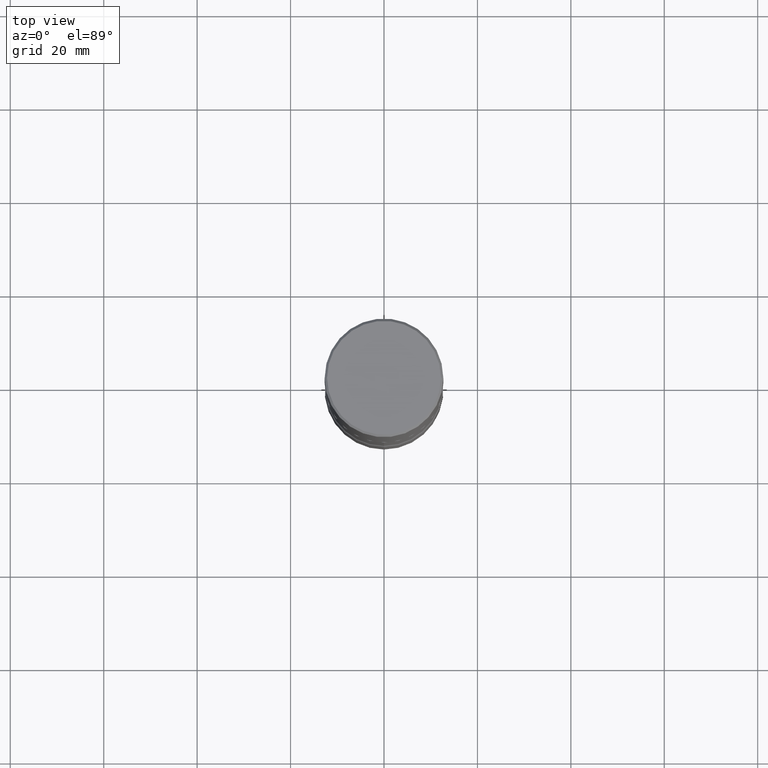
[diagram: clean part render]
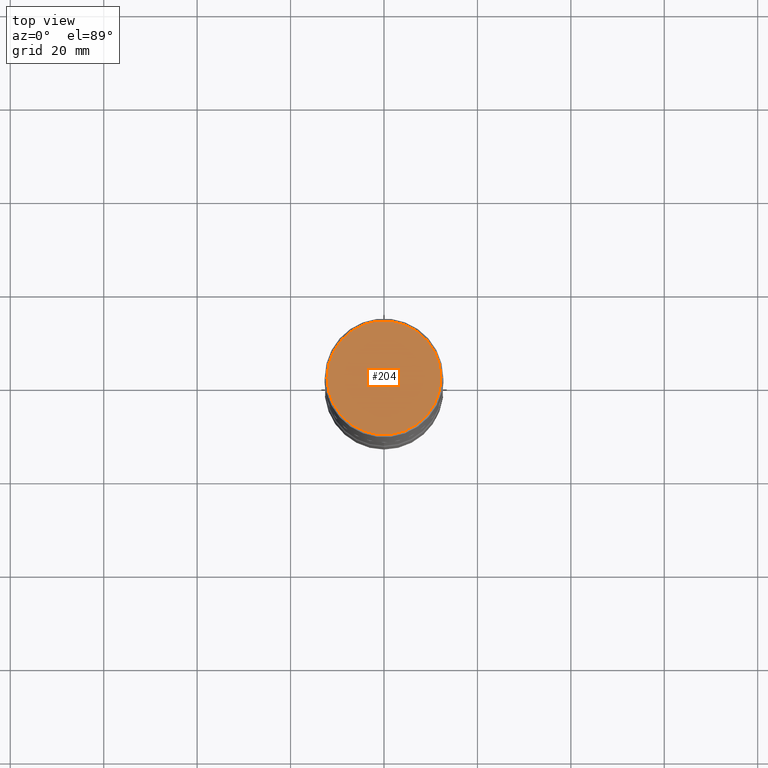
[diagram: same view with one face highlighted and labeled with its STEP entity id]
A machine part, top view. The second image highlights one B-rep face of the part: STEP entity #204.
In plain terms, the highlighted planar face has unit normal (0, -0, -1).
Its self-contained STEP definition (entity closure, byte-faithful):
#11 = DIRECTION ( 'NONE',  ( 2.438088387897960049E-29, -3.491481338843145188E-15, -1.000000000000000000 ) ) ;
#27 = ORIENTED_EDGE ( 'NONE', *, *, #119, .T. ) ;
#33 = DIRECTION ( 'NONE',  ( 1.000000000000000000, -6.982962677686266711E-15, 4.876036955247133327E-29 ) ) ;
#44 = DIRECTION ( 'NONE',  ( -1.000000000000000000, 6.982962677686265922E-15, -4.876176775795935793E-29 ) ) ;
#50 = CARTESIAN_POINT ( 'NONE',  ( -0.4799999999999995937, 3.386736898677836436E-15, 1.280553747027767124E-17 ) ) ;
#51 = ORIENTED_EDGE ( 'NONE', *, *, #333, .T. ) ;
#68 = CARTESIAN_POINT ( 'NONE',  ( 0.4799999999999995937, -3.396558832296479338E-15, 1.280553747032483033E-17 ) ) ;
#98 = DIRECTION ( 'NONE',  ( -2.445468806185136597E-29, 3.491481338843145583E-15, 1.000000000000000000 ) ) ;
#119 = EDGE_CURVE ( 'NONE', #452, #235, #331, .T. ) ;
#162 = CARTESIAN_POINT ( 'NONE',  ( 3.351822085289404787E-15, 0.4799999999999995937, -1.669508273909557867E-15 ) ) ;
#182 = EDGE_LOOP ( 'NONE', ( #51, #27 ) ) ;
#204 = ADVANCED_FACE ( 'NONE', ( #292 ), #475, .F. ) ;
#235 = VERTEX_POINT ( 'NONE', #50 ) ;
#237 = AXIS2_PLACEMENT_3D ( 'NONE', #504, #423, #33 ) ;
#267 = DIRECTION ( 'NONE',  ( 1.000000000000000000, -6.982962677686266711E-15, 4.876036955247133327E-29 ) ) ;
#292 = FACE_OUTER_BOUND ( 'NONE', #182, .T. ) ;
#304 = CARTESIAN_POINT ( 'NONE',  ( -3.131554243005659264E-46, 4.471029511141341874E-32, 1.280553747030123384E-17 ) ) ;
#331 = CIRCLE ( 'NONE', #237, 0.4799999999999995937 ) ;
#333 = EDGE_CURVE ( 'NONE', #235, #452, #402, .T. ) ;
#348 = AXIS2_PLACEMENT_3D ( 'NONE', #304, #98, #267 ) ;
#385 = AXIS2_PLACEMENT_3D ( 'NONE', #162, #11, #44 ) ;
#402 = CIRCLE ( 'NONE', #348, 0.4799999999999995937 ) ;
#423 = DIRECTION ( 'NONE',  ( -2.445468806185136597E-29, 3.491481338843145583E-15, 1.000000000000000000 ) ) ;
#452 = VERTEX_POINT ( 'NONE', #68 ) ;
#475 = PLANE ( 'NONE',  #385 ) ;
#504 = CARTESIAN_POINT ( 'NONE',  ( -3.131554243005659264E-46, 4.471029511141341874E-32, 1.280553747030123384E-17 ) ) ;